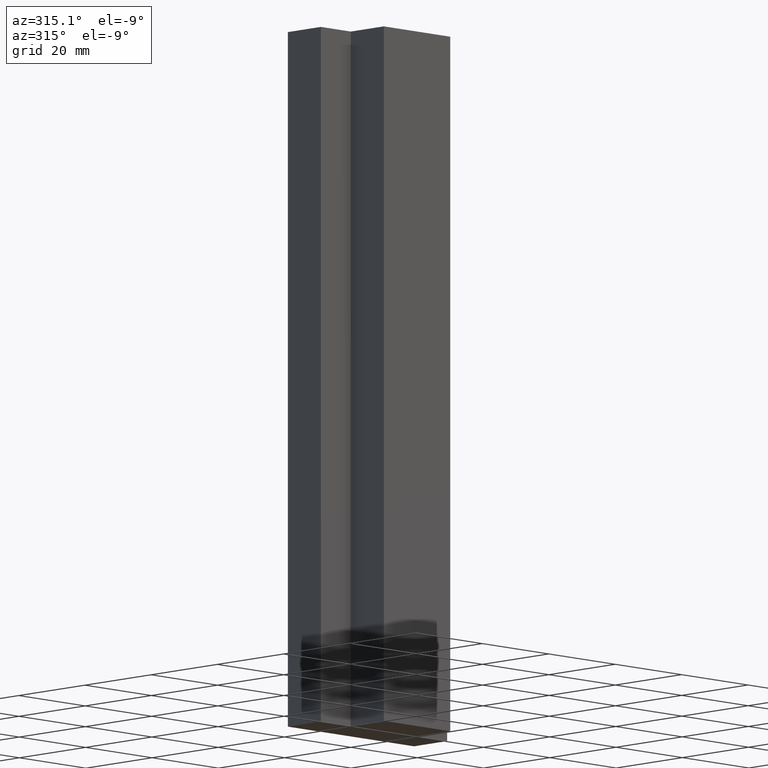
[diagram: clean part render]
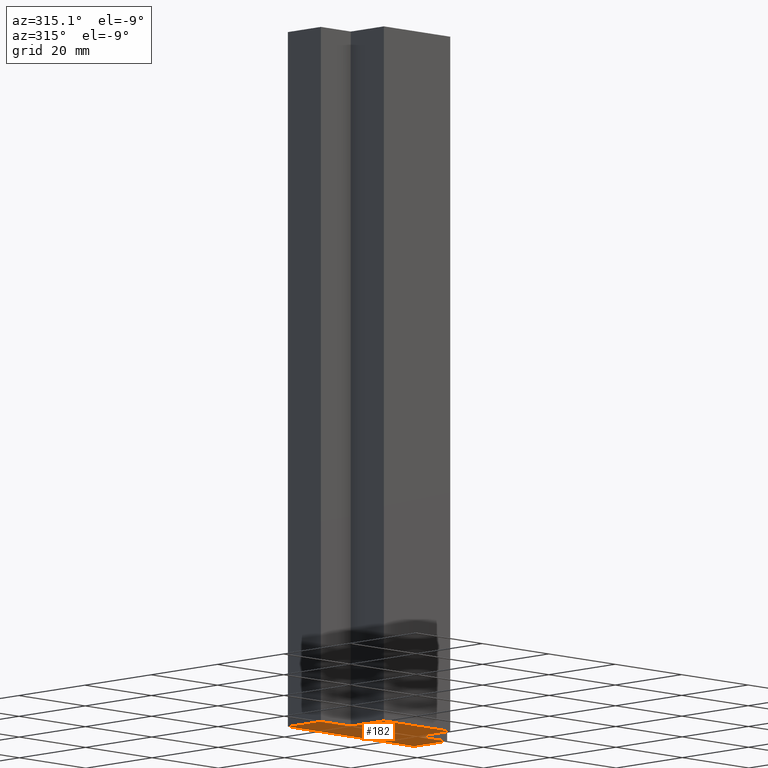
[diagram: same view with one face highlighted and labeled with its STEP entity id]
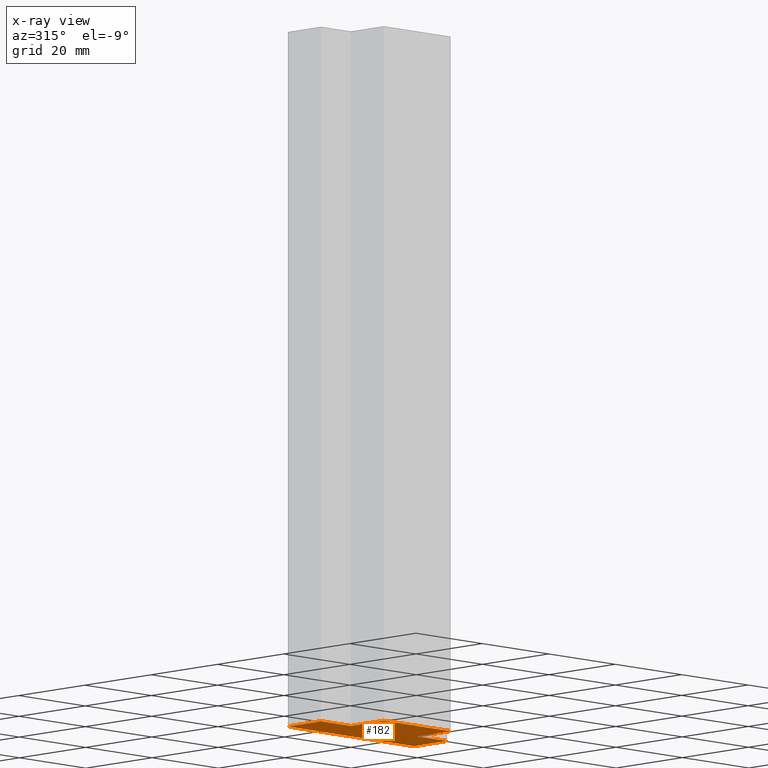
[diagram: x-ray of the same camera — body ghosted, the highlighted face saturated]
A machine part, auxiliary view. The second image highlights one B-rep face of the part: STEP entity #182.
The next image is the same camera in x-ray: the body ghosted, the highlighted face saturated — about 0% of this face is hidden behind the body in this view.
In plain terms, the highlighted planar face has unit normal (0, 0, 1).
Its self-contained STEP definition (entity closure, byte-faithful):
#16=FACE_OUTER_BOUND('',#26,.T.);
#26=EDGE_LOOP('',(#124,#125,#126,#127,#128,#129,#130,#131));
#36=LINE('',#275,#60);
#37=LINE('',#277,#61);
#38=LINE('',#279,#62);
#39=LINE('',#281,#63);
#40=LINE('',#283,#64);
#41=LINE('',#285,#65);
#42=LINE('',#287,#66);
#43=LINE('',#288,#67);
#60=VECTOR('',#229,10.);
#61=VECTOR('',#230,10.);
#62=VECTOR('',#231,10.);
#63=VECTOR('',#232,10.);
#64=VECTOR('',#233,10.);
#65=VECTOR('',#234,10.);
#66=VECTOR('',#235,10.);
#67=VECTOR('',#236,10.);
#84=VERTEX_POINT('',#273);
#85=VERTEX_POINT('',#274);
#86=VERTEX_POINT('',#276);
#87=VERTEX_POINT('',#278);
#88=VERTEX_POINT('',#280);
#89=VERTEX_POINT('',#282);
#90=VERTEX_POINT('',#284);
#91=VERTEX_POINT('',#286);
#100=EDGE_CURVE('',#84,#85,#36,.T.);
#101=EDGE_CURVE('',#86,#84,#37,.T.);
#102=EDGE_CURVE('',#87,#86,#38,.T.);
#103=EDGE_CURVE('',#88,#87,#39,.T.);
#104=EDGE_CURVE('',#89,#88,#40,.T.);
#105=EDGE_CURVE('',#90,#89,#41,.T.);
#106=EDGE_CURVE('',#91,#90,#42,.T.);
#107=EDGE_CURVE('',#85,#91,#43,.T.);
#124=ORIENTED_EDGE('',*,*,#100,.F.);
#125=ORIENTED_EDGE('',*,*,#101,.F.);
#126=ORIENTED_EDGE('',*,*,#102,.F.);
#127=ORIENTED_EDGE('',*,*,#103,.F.);
#128=ORIENTED_EDGE('',*,*,#104,.F.);
#129=ORIENTED_EDGE('',*,*,#105,.F.);
#130=ORIENTED_EDGE('',*,*,#106,.F.);
#131=ORIENTED_EDGE('',*,*,#107,.F.);
#172=PLANE('',#215);
#182=ADVANCED_FACE('',(#16),#172,.F.);
#215=AXIS2_PLACEMENT_3D('',#272,#227,#228);
#227=DIRECTION('center_axis',(0.,0.,1.));
#228=DIRECTION('ref_axis',(1.,0.,0.));
#229=DIRECTION('',(4.44089209850062E-16,1.,0.));
#230=DIRECTION('',(1.,1.2335811384724E-16,0.));
#231=DIRECTION('',(-3.33066907387547E-16,1.,0.));
#232=DIRECTION('',(1.,0.,0.));
#233=DIRECTION('',(-3.33066907387547E-16,-1.,0.));
#234=DIRECTION('',(1.,-1.2335811384724E-16,0.));
#235=DIRECTION('',(8.88178419700125E-16,-1.,0.));
#236=DIRECTION('',(-1.,0.,0.));
#272=CARTESIAN_POINT('Origin',(-1.38777878078145E-15,11.551724137931,-75.));
#273=CARTESIAN_POINT('',(19.,10.,-75.));
#274=CARTESIAN_POINT('',(19.,20.,-75.));
#275=CARTESIAN_POINT('',(19.,20.,-75.));
#276=CARTESIAN_POINT('',(10.,10.,-75.));
#277=CARTESIAN_POINT('',(19.,10.,-75.));
#278=CARTESIAN_POINT('',(10.,-9.38817987215873E-16,-75.));
#279=CARTESIAN_POINT('',(10.,10.,-75.));
#280=CARTESIAN_POINT('',(-10.,-9.38817987215873E-16,-75.));
#281=CARTESIAN_POINT('',(10.,-9.38817987215873E-16,-75.));
#282=CARTESIAN_POINT('',(-10.,10.,-75.));
#283=CARTESIAN_POINT('',(-10.,-9.38817987215873E-16,-75.));
#284=CARTESIAN_POINT('',(-19.,10.,-75.));
#285=CARTESIAN_POINT('',(-10.,10.,-75.));
#286=CARTESIAN_POINT('',(-19.,20.,-75.));
#287=CARTESIAN_POINT('',(-19.,10.,-75.));
#288=CARTESIAN_POINT('',(-19.,20.,-75.));